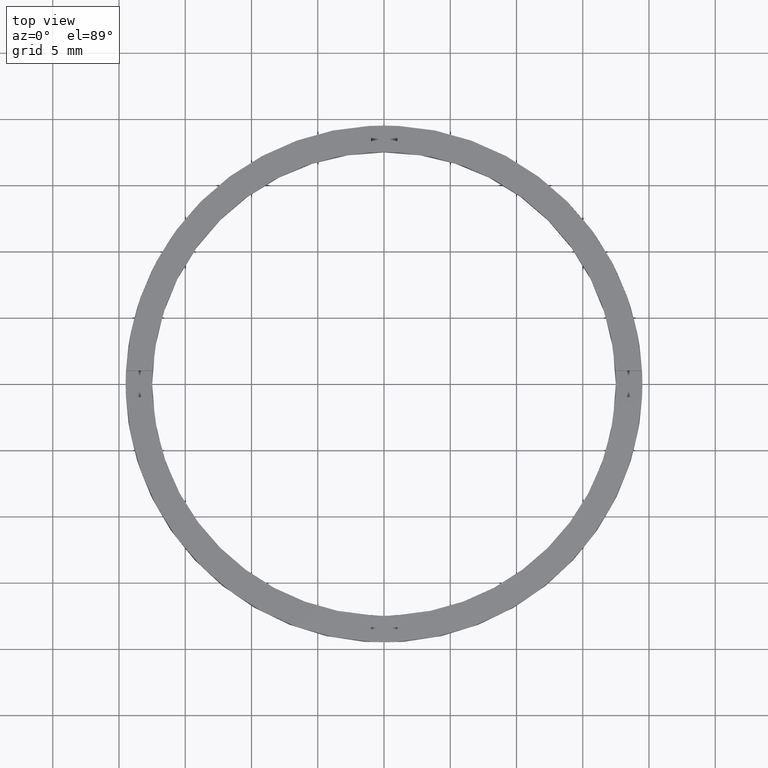
[diagram: clean part render]
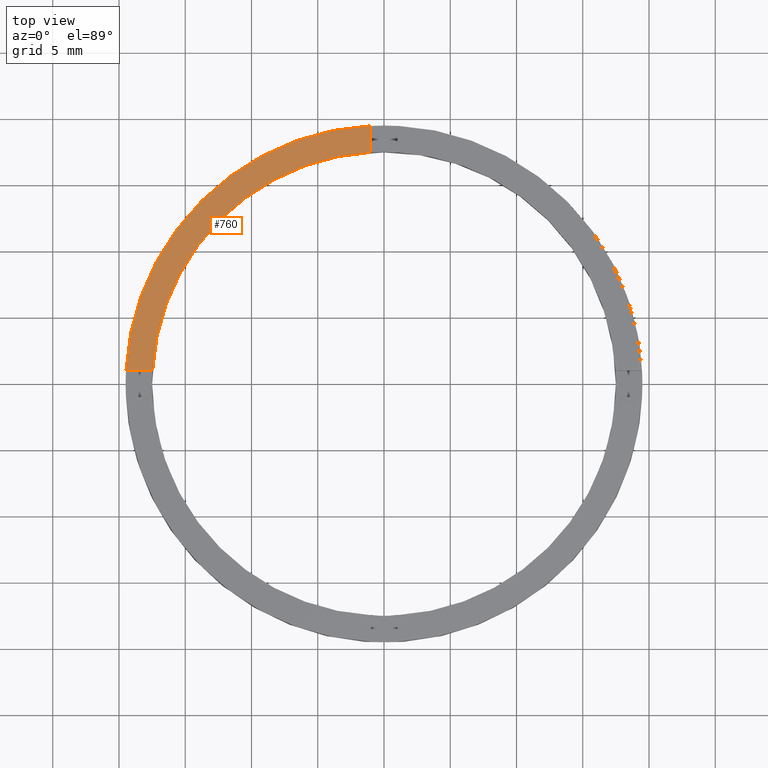
[diagram: same view with one face highlighted and labeled with its STEP entity id]
A machine part, top view. The second image highlights one B-rep face of the part: STEP entity #760.
In plain terms, the highlighted planar face has unit normal (0, 0, 1).
Its self-contained STEP definition (entity closure, byte-faithful):
#16 = EDGE_CURVE ( 'NONE', #455, #639, #582, .T. ) ;
#20 = VECTOR ( 'NONE', #324, 1000.000000000000000 ) ;
#31 = VECTOR ( 'NONE', #409, 1000.000000000000000 ) ;
#34 = LINE ( 'NONE', #565, #20 ) ;
#72 = DIRECTION ( 'NONE',  ( 1.000000000000000000, 0.000000000000000000, 0.000000000000000000 ) ) ;
#73 = PLANE ( 'NONE',  #291 ) ;
#75 = DIRECTION ( 'NONE',  ( 1.000000000000000000, 0.000000000000000000, 0.000000000000000000 ) ) ;
#119 = VERTEX_POINT ( 'NONE', #775 ) ;
#125 = AXIS2_PLACEMENT_3D ( 'NONE', #312, #391, #72 ) ;
#170 = EDGE_LOOP ( 'NONE', ( #346, #218, #726, #211 ) ) ;
#181 = CARTESIAN_POINT ( 'NONE',  ( -1.000000000000025313, 9.500000000000000000, 2.500000000000000000 ) ) ;
#211 = ORIENTED_EDGE ( 'NONE', *, *, #707, .F. ) ;
#218 = ORIENTED_EDGE ( 'NONE', *, *, #16, .T. ) ;
#223 = AXIS2_PLACEMENT_3D ( 'NONE', #314, #508, #75 ) ;
#227 = EDGE_CURVE ( 'NONE', #119, #639, #34, .T. ) ;
#242 = CARTESIAN_POINT ( 'NONE',  ( -1.000000000000024869, 17.47140520965614741, 2.500000000000000000 ) ) ;
#256 = CARTESIAN_POINT ( 'NONE',  ( 0.000000000000000000, 0.000000000000000000, 2.500000000000000000 ) ) ;
#285 = EDGE_CURVE ( 'NONE', #455, #372, #297, .T. ) ;
#291 = AXIS2_PLACEMENT_3D ( 'NONE', #256, #424, #488 ) ;
#297 = LINE ( 'NONE', #181, #31 ) ;
#312 = CARTESIAN_POINT ( 'NONE',  ( 0.000000000000000000, 0.000000000000000000, 2.500000000000000000 ) ) ;
#314 = CARTESIAN_POINT ( 'NONE',  ( 0.000000000000000000, 0.000000000000000000, 2.500000000000000000 ) ) ;
#316 = CARTESIAN_POINT ( 'NONE',  ( -19.47434209415044748, 0.9999999999999756861, 2.500000000000000000 ) ) ;
#324 = DIRECTION ( 'NONE',  ( -1.000000000000000000, -1.734723475976806848E-16, 0.000000000000000000 ) ) ;
#346 = ORIENTED_EDGE ( 'NONE', *, *, #285, .F. ) ;
#372 = VERTEX_POINT ( 'NONE', #242 ) ;
#391 = DIRECTION ( 'NONE',  ( 0.000000000000000000, 0.000000000000000000, 1.000000000000000000 ) ) ;
#409 = DIRECTION ( 'NONE',  ( -0.000000000000000000, -1.000000000000000000, -0.000000000000000000 ) ) ;
#424 = DIRECTION ( 'NONE',  ( 0.000000000000000000, 0.000000000000000000, 1.000000000000000000 ) ) ;
#455 = VERTEX_POINT ( 'NONE', #473 ) ;
#473 = CARTESIAN_POINT ( 'NONE',  ( -1.000000000000024869, 19.47434209415044393, 2.500000000000000000 ) ) ;
#488 = DIRECTION ( 'NONE',  ( 1.000000000000000000, 0.000000000000000000, -0.000000000000000000 ) ) ;
#508 = DIRECTION ( 'NONE',  ( 0.000000000000000000, 0.000000000000000000, 1.000000000000000000 ) ) ;
#565 = CARTESIAN_POINT ( 'NONE',  ( -9.500000000000184741, 0.9999999999999774625, 2.500000000000000000 ) ) ;
#582 = CIRCLE ( 'NONE', #125, 19.50000000000000000 ) ;
#639 = VERTEX_POINT ( 'NONE', #316 ) ;
#692 = CIRCLE ( 'NONE', #223, 17.50000000000000355 ) ;
#703 = FACE_OUTER_BOUND ( 'NONE', #170, .T. ) ;
#707 = EDGE_CURVE ( 'NONE', #372, #119, #692, .T. ) ;
#726 = ORIENTED_EDGE ( 'NONE', *, *, #227, .F. ) ;
#760 = ADVANCED_FACE ( 'NONE', ( #703 ), #73, .T. ) ;
#775 = CARTESIAN_POINT ( 'NONE',  ( -17.47140520965615096, 0.9999999999999761302, 2.500000000000000000 ) ) ;